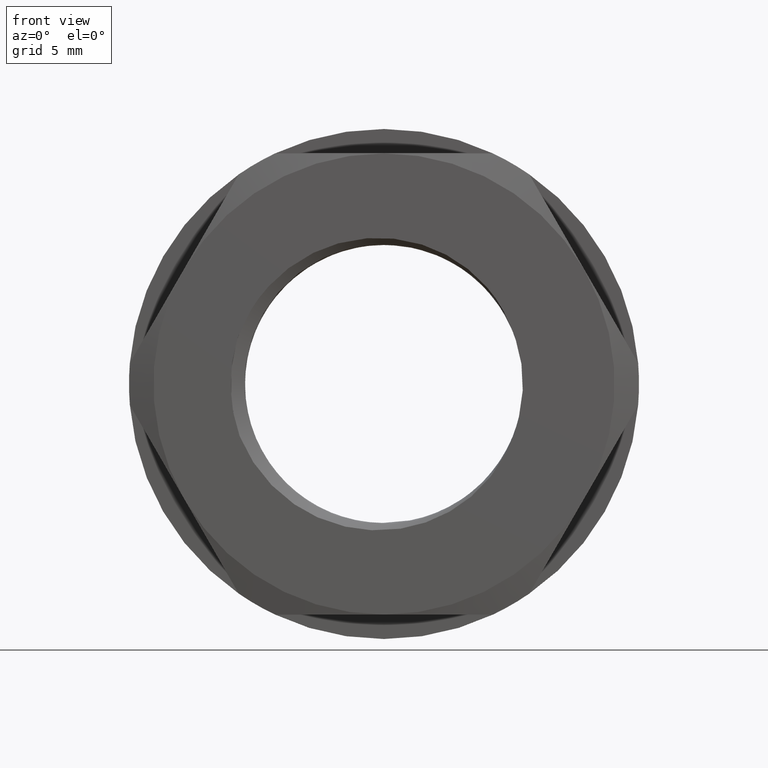
[diagram: clean part render]
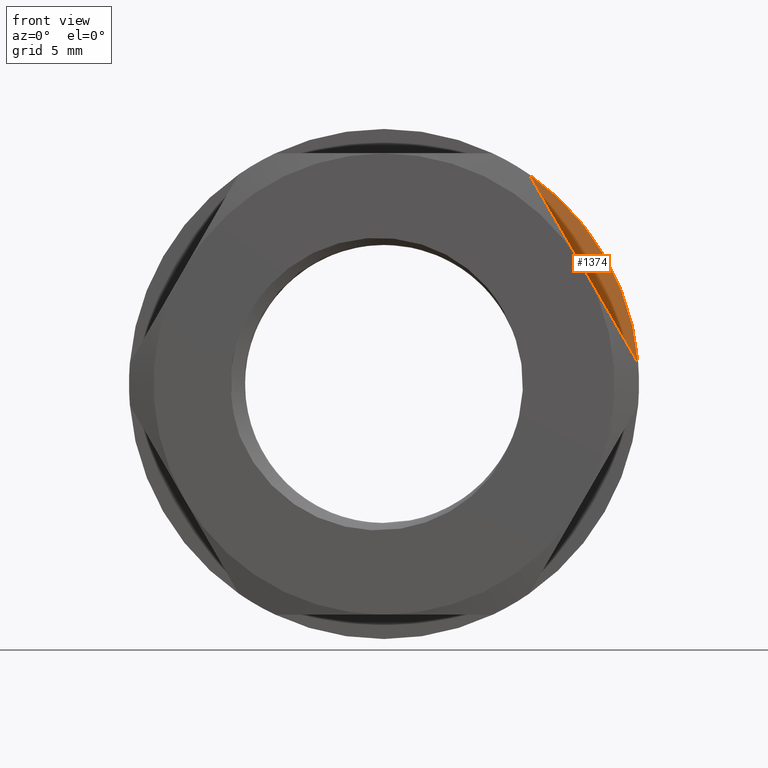
[diagram: same view with one face highlighted and labeled with its STEP entity id]
A machine part, front view. The second image highlights one B-rep face of the part: STEP entity #1374.
In plain terms, the highlighted planar face has unit normal (0, -1, 0).
Its self-contained STEP definition (entity closure, byte-faithful):
#144 = CIRCLE ( 'NONE', #714, 10.44999999999999929 ) ;
#191 = FACE_OUTER_BOUND ( 'NONE', #1148, .T. ) ;
#415 = DIRECTION ( 'NONE',  ( -0.4999999999999998890, 0.0000000000000000000, 0.8660254037844387076 ) ) ;
#552 = ORIENTED_EDGE ( 'NONE', *, *, #1282, .T. ) ;
#622 = LINE ( 'NONE', #1936, #810 ) ;
#714 = AXIS2_PLACEMENT_3D ( 'NONE', #1852, #1685, #1675 ) ;
#745 = ORIENTED_EDGE ( 'NONE', *, *, #1910, .F. ) ;
#772 = AXIS2_PLACEMENT_3D ( 'NONE', #1710, #1522, #1865 ) ;
#810 = VECTOR ( 'NONE', #415, 1000.000000000000000 ) ;
#951 = CARTESIAN_POINT ( 'NONE',  ( 5.953469263443389892, 6.309999999999999609, 8.588288754416380399 ) ) ;
#1148 = EDGE_LOOP ( 'NONE', ( #552, #745 ) ) ;
#1282 = EDGE_CURVE ( 'NONE', #1851, #1785, #144, .T. ) ;
#1374 = ADVANCED_FACE ( 'NONE', ( #191 ), #1551, .T. ) ;
#1522 = DIRECTION ( 'NONE',  ( 0.0000000000000000000, -1.000000000000000000, 0.0000000000000000000 ) ) ;
#1551 = PLANE ( 'NONE',  #772 ) ;
#1675 = DIRECTION ( 'NONE',  ( 0.0000000000000000000, 0.0000000000000000000, -1.000000000000000000 ) ) ;
#1685 = DIRECTION ( 'NONE',  ( 0.0000000000000000000, -1.000000000000000000, 0.0000000000000000000 ) ) ;
#1710 = CARTESIAN_POINT ( 'NONE',  ( 0.0000000000000000000, 6.309999999999999609, -10.44999999999999929 ) ) ;
#1785 = VERTEX_POINT ( 'NONE', #951 ) ;
#1791 = CARTESIAN_POINT ( 'NONE',  ( 10.41441086808250027, 6.309999999999999609, 0.8617112455836110074 ) ) ;
#1851 = VERTEX_POINT ( 'NONE', #1791 ) ;
#1852 = CARTESIAN_POINT ( 'NONE',  ( 0.0000000000000000000, 6.309999999999999609, 0.0000000000000000000 ) ) ;
#1865 = DIRECTION ( 'NONE',  ( 0.0000000000000000000, 0.0000000000000000000, -1.000000000000000000 ) ) ;
#1910 = EDGE_CURVE ( 'NONE', #1851, #1785, #622, .T. ) ;
#1936 = CARTESIAN_POINT ( 'NONE',  ( 5.953469263443389892, 6.309999999999999609, 8.588288754416380399 ) ) ;